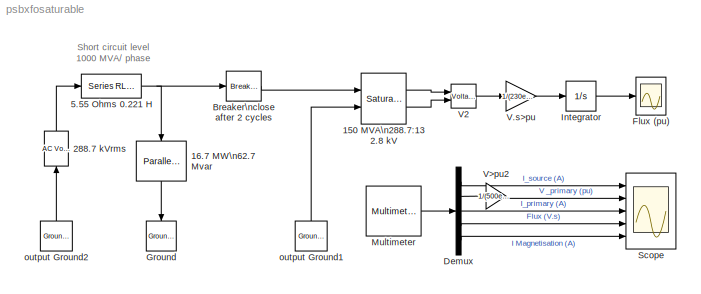
MODEL psbxfosaturable
KIND model
BLOCK [Reference] 150 MVA\n288.7:132.8 kV  REF=powerlib2/Elements/Saturable Transformer
  H = off
  Initialslope = +1
  PSBOutputType = 1111
  Ports = [2, 2]
  SourceBlock = powerlib2/Elements/Saturable Transformer
  SourceType = Saturable Transformer
  Tag = PoWeRsYsTeMbLoCk
  a = [ 150e6 60 ]
  b = [ 500e3/sqrt(3) 0.002 0.08 ]
  c = [ 230e3/sqrt(3) 0.002 0.08]
  d = [ 230e3/sqrt(3) 0.002 0.08]
  e = [0 0;  0.0 1.2; 1.0  1.52]
  f = [500 0.8]
  matfile = 'hysteresis_SI'
  mesure = All measurements (V I Flux)
  w3check = off
BLOCK [Reference] 16.7 MW\n62.7 Mvar  REF=powerlib2/Elements/Parallel RLC Load
  PSBOutputType = 1
  Ports = [1, 1]
  SourceBlock = powerlib2/Elements/Parallel RLC Load
  SourceType = Parallel RLC Load
  Tag = PoWeRsYsTeMbLoCk
  a = 500e3/sqrt(3)
  b = 60
  c = 16.7e6
  d = 0
  e = 62.7e6
  mesure = None
BLOCK [Reference] 288.7 kVrms  REF=powerlib2/Electrical\nSources/AC Voltage Source
  A = 500e3/sqrt(3)*sqrt(2)
  F = 60
  P = 0
  PSBOutputType = 1
  Ports = [1, 1]
  SourceBlock = powerlib2/Electrical\nSources/AC Voltage Source
  SourceType = AC Voltage Source
  Tag = PoWeRsYsTeMbLoCk
  mesure = None
  stime = 0
BLOCK [Reference] 5.55 Ohms 0.221 H   REF=powerlib2/Elements/Series RLC Branch
  PSBOutputType = 1
  Ports = [1, 1]
  SourceBlock = powerlib2/Elements/Series RLC Branch
  SourceType = Series RLC Branch
  Tag = PoWeRsYsTeMbLoCk
  a = 5.55
  b = 0.221
  c = inf
  mesure = Branch current
BLOCK [Reference] Breaker\nclose after 2 cycles  REF=powerlib2/Elements/Breaker
  PSBOutputType = 1
  Ports = [1, 1]
  SourceBlock = powerlib2/Elements/Breaker
  SourceType = Breaker
  Tag = PoWeRsYsTeMbLoCk
  Ts = 0
  a = 0.01
  c = 0
  comext = off
  cs = inf
  mesure = None
  rs = 100e6
  times = [ 2/60 ]
BLOCK [Demux] Demux
  Outputs = 5
  Ports = [1, 5]
BLOCK [Scope] Flux (pu)
  DataFormat = Array
  DeleteFcn = simscope BlockIsBeingDestroyed
  LimitDataPoints = off
  NumInputPorts = 1
  Ports = [1]
  PostSaveFcn = simscope Save
  TickLabels = on
  TimeRange = 0.5
  YMax = 2.25
  YMin = -0.25
BLOCK [Reference] Ground  REF=powerlib2/Connectors/Ground (input)
  Ports = [1]
  SourceBlock = powerlib2/Connectors/Ground (input)
  SourceType = Ground
  Tag = PoWeRsYsTeMbLoCk
BLOCK [Integrator] Integrator
  InitialCondition = 0.8
  Ports = [1, 1]
BLOCK [Reference] Multimeter  REF=powerlib2/Measurements/Multimeter
  AxesSetting = [0,0.1,-100,100]
  Display = 0
  Gain = [1 1 1 1 1]
  L = 8
  OutputType = Magnitude
  PSBOutputType = 1
  PSBequivalent = 0
  PhasorSimulation = off
  Ports = [0, 1]
  SavedBlockNames = -11
  SourceBlock = powerlib2/Measurements/Multimeter
  SourceType = MultimeterPSB
  Tag = PoWeRsYsTeMmEaSuReMeNt
  sel = [3 1 4 8 6]
  yselected = [2,8.0017089843750000e+000;3,5.0018310546875000e+000;6,5.0018310546875000e+000;16,5.0018310546875000e+000;9,5.0018310546875000e+000]
BLOCK [Scope] Scope
  DataFormat = StructureWithTime
  DeleteFcn = simscope BlockIsBeingDestroyed
  LimitDataPoints = off
  NumInputPorts = 5
  Ports = [5]
  PostSaveFcn = simscope Save
  SaveName = R
  SaveToWorkspace = on
  TimeRange = 0.5
  YMax = 2500~1.5~2500~2500~2500
  YMin = -500~-1.5~-500~0~-500
BLOCK [Gain] V.s>pu
  Gain = 1/(230e3/sqrt(3)*sqrt(2)/2/pi/60)
BLOCK [Reference] V2  REF=powerlib2/Measurements/Voltage Measurement
  OutputType = Magnitude
  PSBOutputType = 0
  PSBequivalent = 0
  PhasorSimulation = off
  Ports = [2, 1]
  SourceBlock = powerlib2/Measurements/Voltage Measurement
  SourceType = Voltage Measurement
  Tag = PoWeRsYsTeMmEaSuReMeNt
BLOCK [Gain] V>pu2
  Gain = 1/(500e3/sqrt(3)*sqrt(2))
BLOCK [Reference] output Ground1  REF=powerlib2/Connectors/Ground (output)
  PSBOutputType = 1
  Ports = [0, 1]
  SourceBlock = powerlib2/Connectors/Ground (output)
  SourceType = Ground
  Tag = PoWeRsYsTeMbLoCk
BLOCK [Reference] output Ground2  REF=powerlib2/Connectors/Ground (output)
  PSBOutputType = 1
  Ports = [0, 1]
  SourceBlock = powerlib2/Connectors/Ground (output)
  SourceType = Ground
  Tag = PoWeRsYsTeMbLoCk
ANNOTATION (root): Short circuit level\n1000 MVA/ phase
LINE 150 MVA\n288.7:132.8 kV:1 -> V2:1
LINE 150 MVA\n288.7:132.8 kV:2 -> V2:2
LINE 16.7 MW\n62.7 Mvar:1 -> Ground:1
LINE 288.7 kVrms:1 -> 5.55 Ohms 0.221 H :1
NET 5.55 Ohms 0.221 H :1 -> 16.7 MW\n62.7 Mvar:1, Breaker\nclose after 2 cycles:1
LINE Breaker\nclose after 2 cycles:1 -> 150 MVA\n288.7:132.8 kV:1
LINE Demux:1 -> Scope:1
LINE Demux:2 -> V>pu2:1
LINE Demux:3 -> Scope:3
LINE Demux:4 -> Scope:4
LINE Demux:5 -> Scope:5
LINE Integrator:1 -> Flux (pu):1
LINE Multimeter:1 -> Demux:1
LINE V.s>pu:1 -> Integrator:1
LINE V2:1 -> V.s>pu:1
LINE V>pu2:1 -> Scope:2
LINE output Ground1:1 -> 150 MVA\n288.7:132.8 kV:2
LINE output Ground2:1 -> 288.7 kVrms:1
note: NET lines group one-source signal fan-out (src -> all destinations, sorted); 1:1 wires keep LINE
